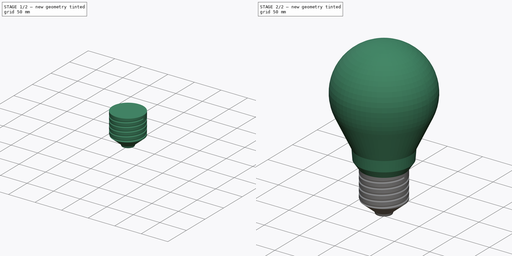
[diagram: build sequence overview — one tinted view per stage of 2, left to right]
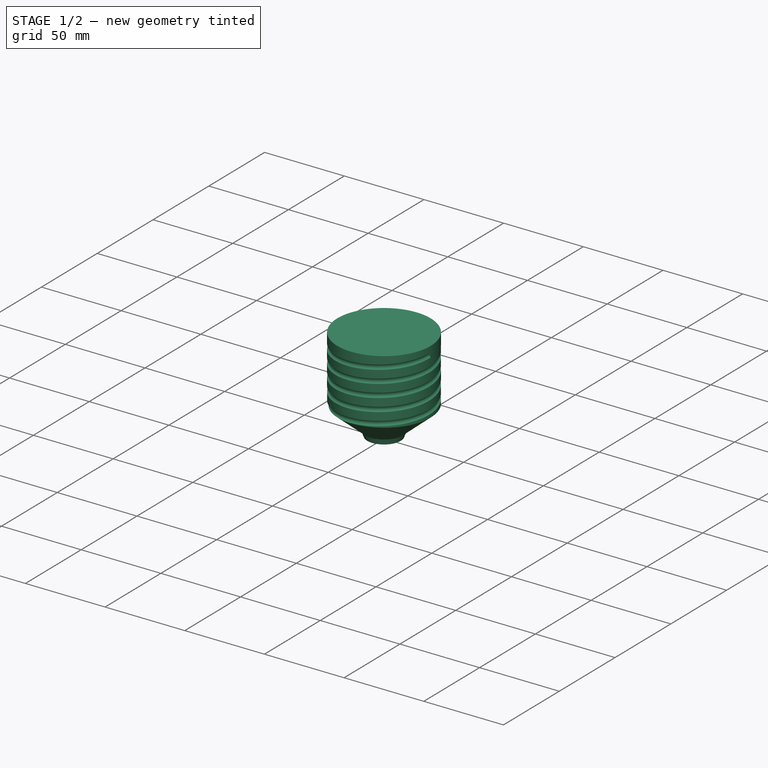
[diagram: stage 1 of 2 — iso view after this stage's code; geometry added in this stage tinted green]
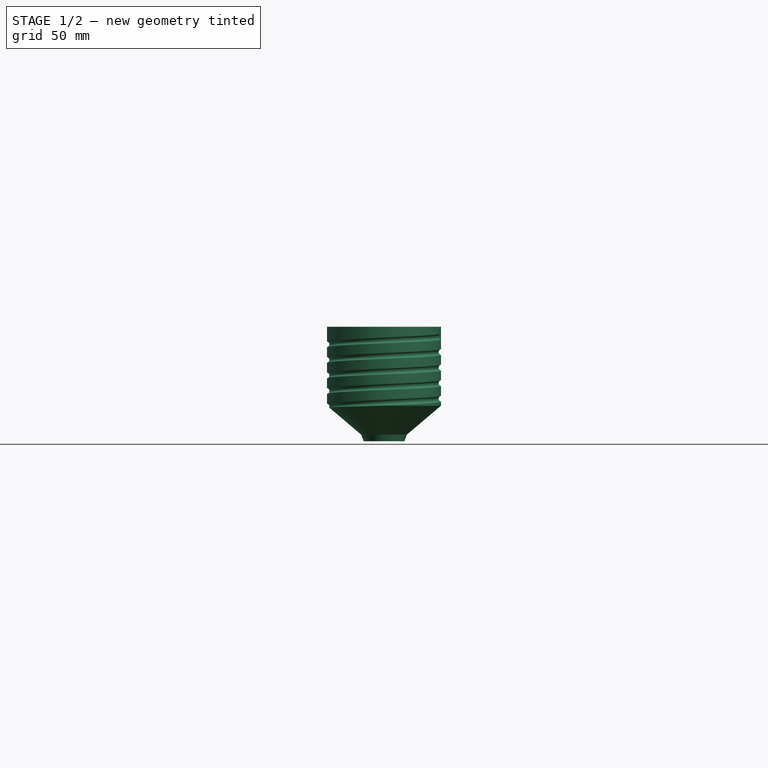
[diagram: stage 1 of 2 — front view after this stage's code; geometry added in this stage tinted green]
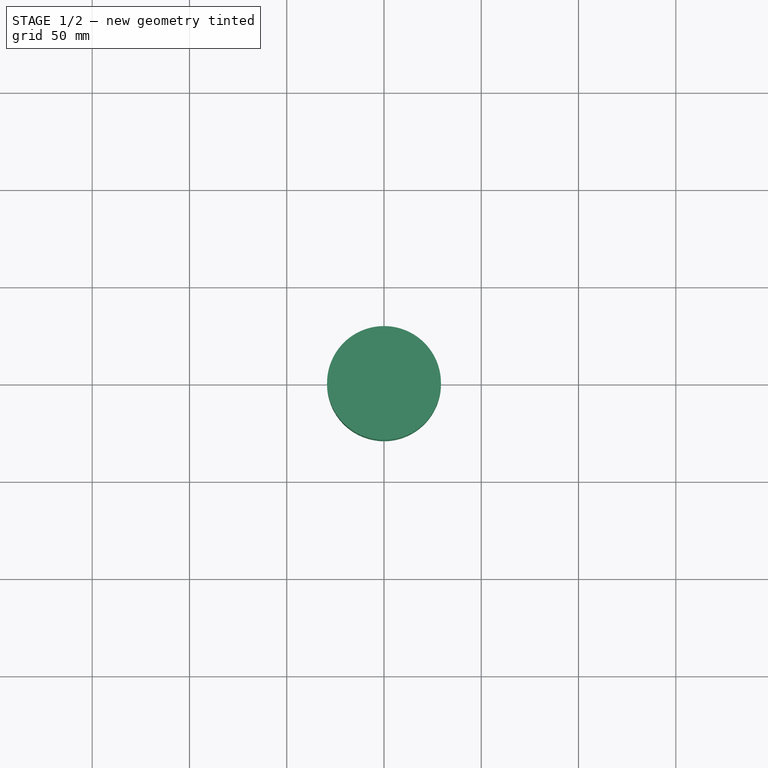
[diagram: stage 1 of 2 — top view after this stage's code; geometry added in this stage tinted green]
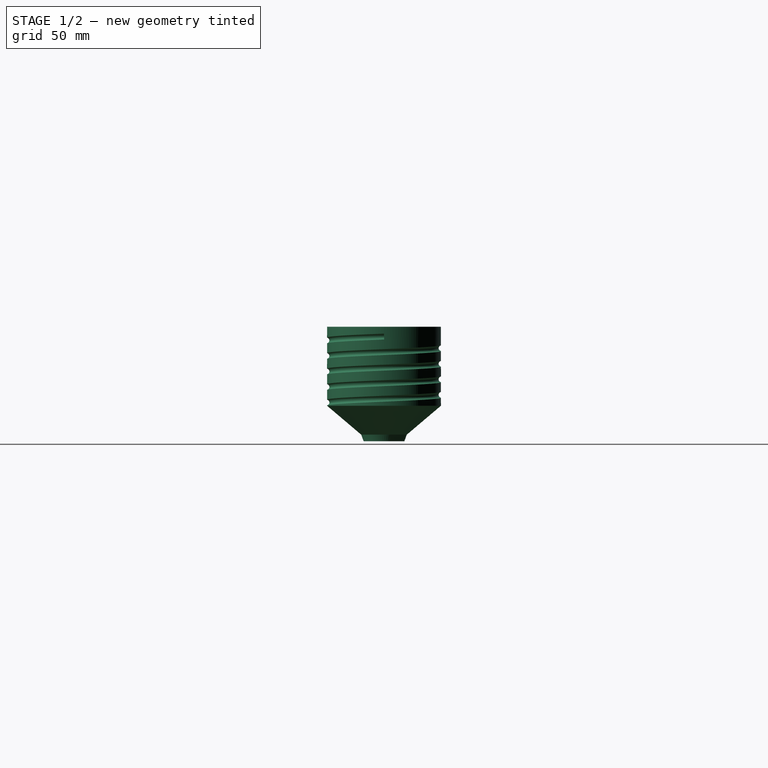
[diagram: stage 1 of 2 — right view after this stage's code; geometry added in this stage tinted green]
FCSTD DOCUMENT  (FreeCAD 0.18R13663 +14 (Git))
Label: lightbulb
License: All rights reserved
LicenseURL: http://en.wikipedia.org/wiki/All_rights_reserved
objects: Sketcher::SketchObject×3, PartDesign::Revolution×2, PartDesign::Body×2, Image::ImagePlane×1, Part::Helix×1, PartDesign::ShapeBinder×1, PartDesign::SubtractivePipe×1, Part::Feature×1
note: 14 computed .brp shape members not serialized (recipe doc carries the construction recipe); baked Part::Feature solids carry a one-line shape summary decoded from their .brp

FEATURE [PartDesign::Body] Body
  Group = -> [Sketch,Revolution]
  Origin = -> Origin
  Tip = -> Revolution
FEATURE [Sketcher::SketchObject] Sketch001
  MapMode = 5
  Placement = pos=(0,0,0) rot=(1,0,0;1.5708rad)
  Support = -> [XZ_Plane001]
  sketch-geometry (6):
    g0: LineSegment StartX=0 StartY=0 StartZ=0 EndX=0 EndY=-58.9019 EndZ=0
    g1: LineSegment StartX=0 StartY=-58.9019 StartZ=0 EndX=10.4623 EndY=-58.9019 EndZ=0
    g2: LineSegment StartX=10.4623 StartY=-58.9019 StartZ=0 EndX=11.7163 EndY=-55.4981 EndZ=0
    g3: LineSegment StartX=11.7163 StartY=-55.4981 StartZ=0 EndX=29.2727 EndY=-40.6289 EndZ=0
    g4: LineSegment StartX=29.2727 StartY=-40.6289 StartZ=0 EndX=29.2727 EndY=0 EndZ=0
    g5: LineSegment StartX=29.2727 StartY=0 StartZ=0 EndX=0 EndY=0 EndZ=0
  constraints (11):
    c: Coincident(g-1,g0)
    c: Vertical(g0)
    c: Coincident(g0,g1)
    c: Horizontal(g1)
    c: Coincident(g1,g2)
    c: Coincident(g2,g3)
    c: Coincident(g3,g4)
    c: PointOnObject(g4,g-1)
    c: Vertical(g4)
    c: Coincident(g4,g5)
    c: Coincident(g5,g0)
FEATURE [PartDesign::Revolution] Revolution001
  Angle = 360
  Axis = (0,0,1)
  Base = (0,0,0)
  Placement = pos=(0,0,0) rot=(1,0,0;1.5708rad)
  Profile = -> Sketch001
  ReferenceAxis = -> Sketch001 [V_Axis]
  Reversed = true
FEATURE [Part::Helix] Helix
  Angle = 0
  AttacherType = Attacher::AttachEngine3D
  Height = 40.7
  LocalCoord = 0
  Pitch = 8
  Placement = pos=(0,0,-45) rot=(0,0,1;0rad)
  Radius = 29.7
  Style = 1
FEATURE [Sketcher::SketchObject] Sketch002
  MapMode = 5
  Placement = pos=(0,0,0) rot=(1,0,0;1.5708rad)
  Support = -> [XZ_Plane001]
  sketch-geometry (1):
    g0: Circle CenterX=29.6523 CenterY=-44.98 CenterZ=0 NormalX=0 NormalY=0 NormalZ=1 AngleXU=0 Radius=1.56522
FEATURE [PartDesign::ShapeBinder] ReferenceHelix
  Placement = pos=(0,0,-45) rot=(0,0,1;0rad)
  Support = -> [Helix]
FEATURE [PartDesign::SubtractivePipe] SubtractivePipe
  AuxilleryCurvelinear = true
  AuxillerySpineTangent = false
  BaseFeature = -> Revolution001
  Binormal = (0,0,0)
  Mode = 0
  Placement = pos=(0,0,0) rot=(1,0,0;1.5708rad)
  Profile = -> Sketch002
  Spine = -> ReferenceHelix [Edge1,Edge2,Edge3,Edge4,Edge5]
  SpineTangent = false
  Transformation = 0
  Transition = 0
FEATURE [PartDesign::Body] Body001
  Group = -> [Sketch001,Revolution001,Sketch002,SubtractivePipe,ReferenceHelix]
  Origin = -> Origin001
  Tip = -> SubtractivePipe
FEATURE [Part::Feature] Body001001  label="Body002"
  shape: bbox 66.28 x 67.15 x 58.9 mm, 16 faces (baked)
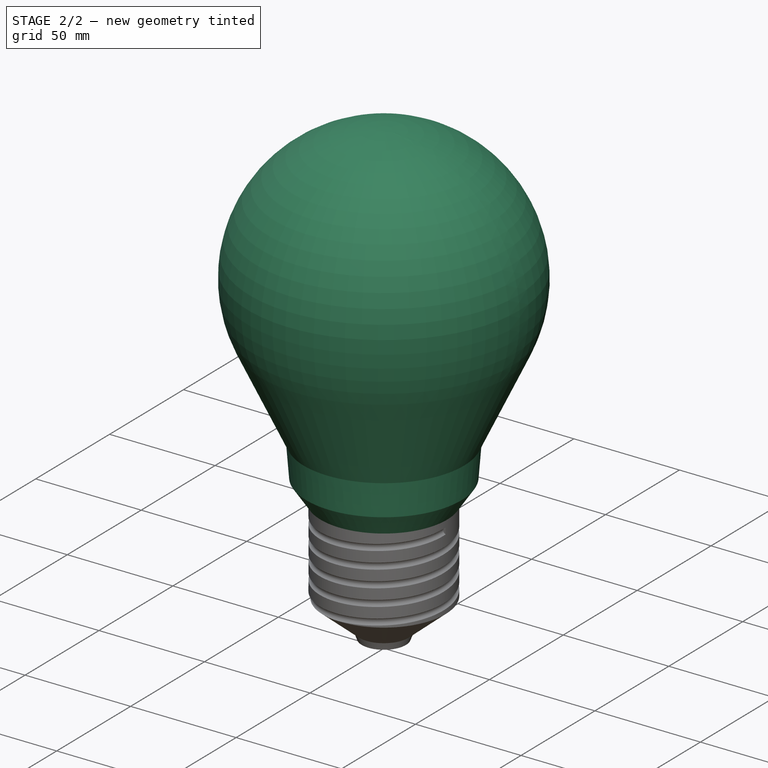
[diagram: stage 2 of 2 — iso view after this stage's code; geometry added in this stage tinted green]
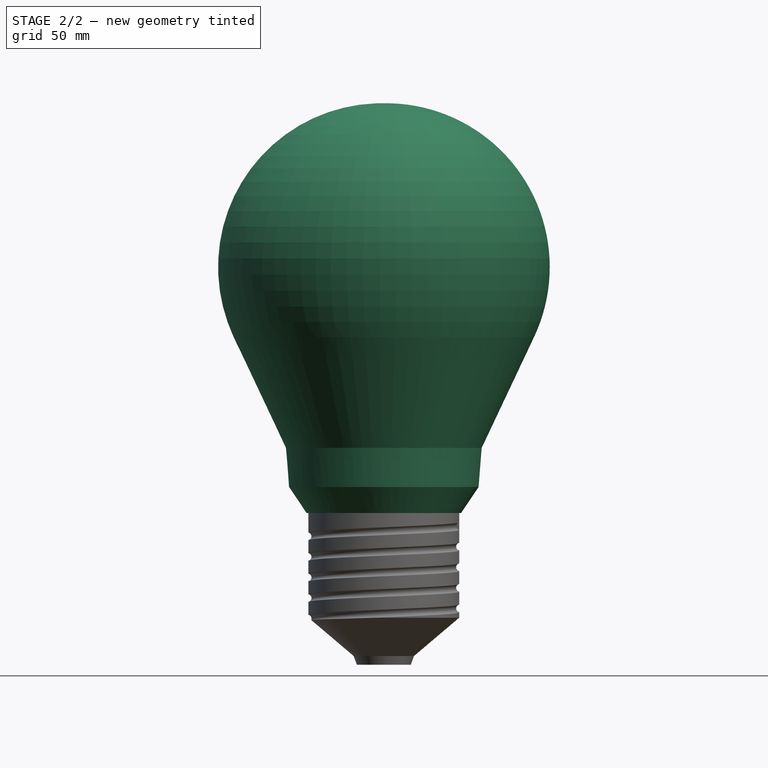
[diagram: stage 2 of 2 — front view after this stage's code; geometry added in this stage tinted green]
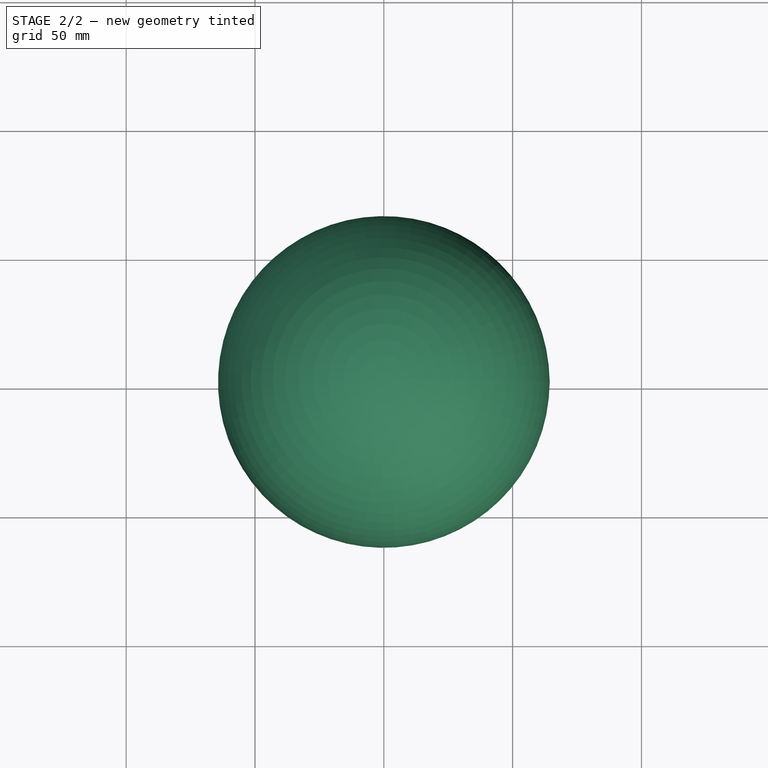
[diagram: stage 2 of 2 — top view after this stage's code; geometry added in this stage tinted green]
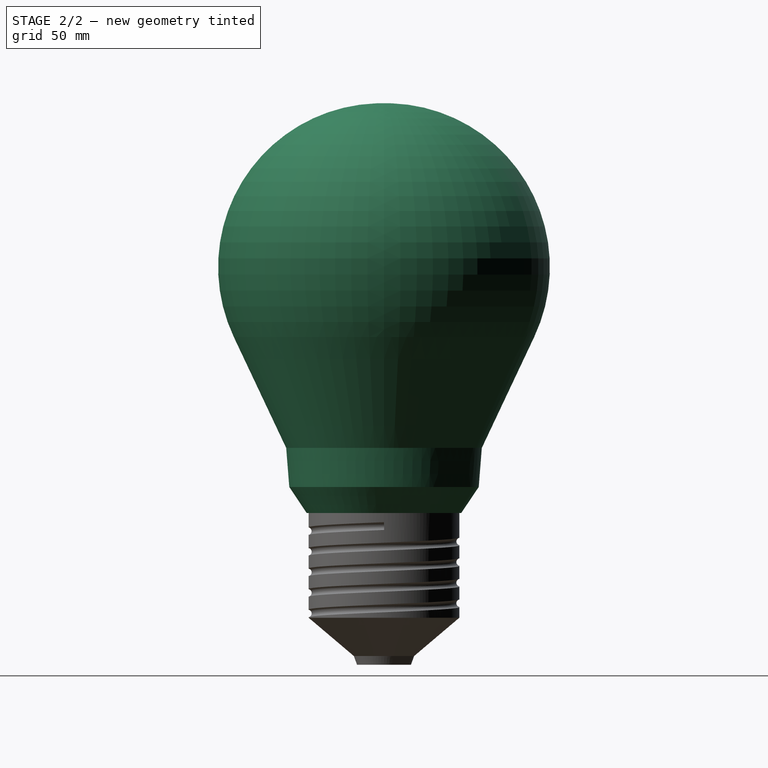
[diagram: stage 2 of 2 — right view after this stage's code; geometry added in this stage tinted green]
FEATURE [Sketcher::SketchObject] Sketch
  MapMode = 5
  Placement = pos=(0,0,0) rot=(1,0,0;1.5708rad)
  Support = -> [XZ_Plane]
  sketch-geometry (6):
    g0: LineSegment StartX=0 StartY=0 StartZ=0 EndX=30.0045 EndY=0 EndZ=0
    g1: LineSegment StartX=30.0045 StartY=0 StartZ=0 EndX=36.7824 EndY=10.1201 EndZ=0
    g2: LineSegment StartX=36.7824 StartY=10.1201 StartZ=0 EndX=37.9785 EndY=25.2706 EndZ=0
    g3: LineSegment StartX=37.9785 StartY=25.2706 StartZ=0 EndX=58.3132 EndY=68.3302 EndZ=0
    g4: ArcOfCircle CenterX=0.818507 CenterY=95.4818 CenterZ=0 NormalX=0 NormalY=0 NormalZ=1 AngleXU=0 Radius=63.5834 StartAngle=5.84199 EndAngle=7.86685
    g5: LineSegment StartX=0 StartY=159.06 StartZ=0 EndX=0 EndY=0 EndZ=0
  constraints (9):
    c: Coincident(g-1,g0)
    c: Horizontal(g0)
    c: Coincident(g0,g1)
    c: Coincident(g1,g2)
    c: Coincident(g2,g3)
    c: Tangent(g3,g4) = -1.5708
    c: Coincident(g5,g4)
    c: Coincident(g5,g-1)
    c: Vertical(g5)
FEATURE [Image::ImagePlane] ImagePlane
  Placement = pos=(0,0,50) rot=(-1,0,0;4.71239rad)
  XSize = 169
  YSize = 226
FEATURE [PartDesign::Revolution] Revolution
  Angle = 360
  Axis = (0,0,1)
  Base = (0,0,0)
  Placement = pos=(0,0,0) rot=(1,0,0;1.5708rad)
  Profile = -> Sketch
  ReferenceAxis = -> Sketch [V_Axis]
  Reversed = true
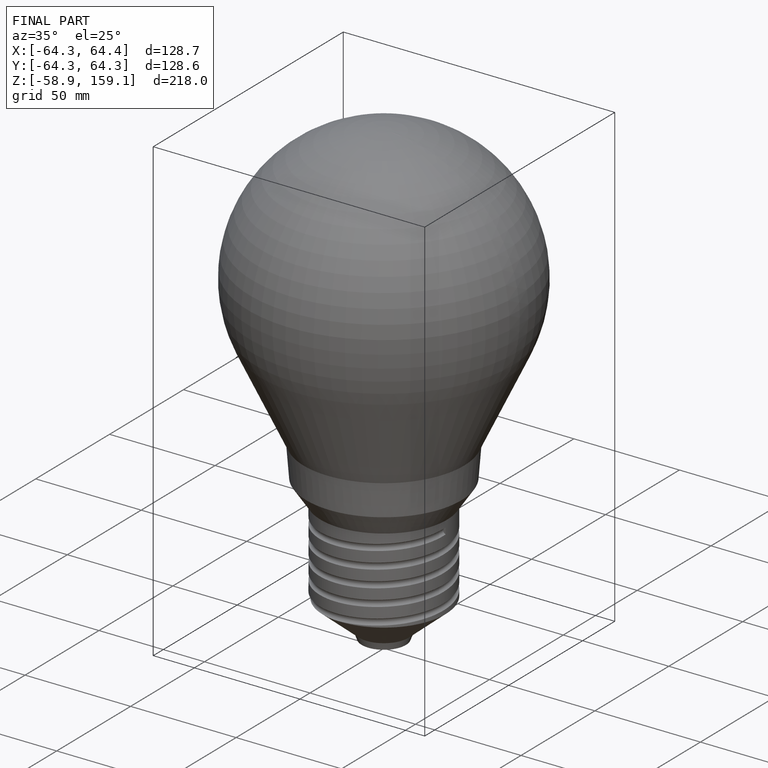
[diagram: finished part — iso view with bounding-box wireframe]
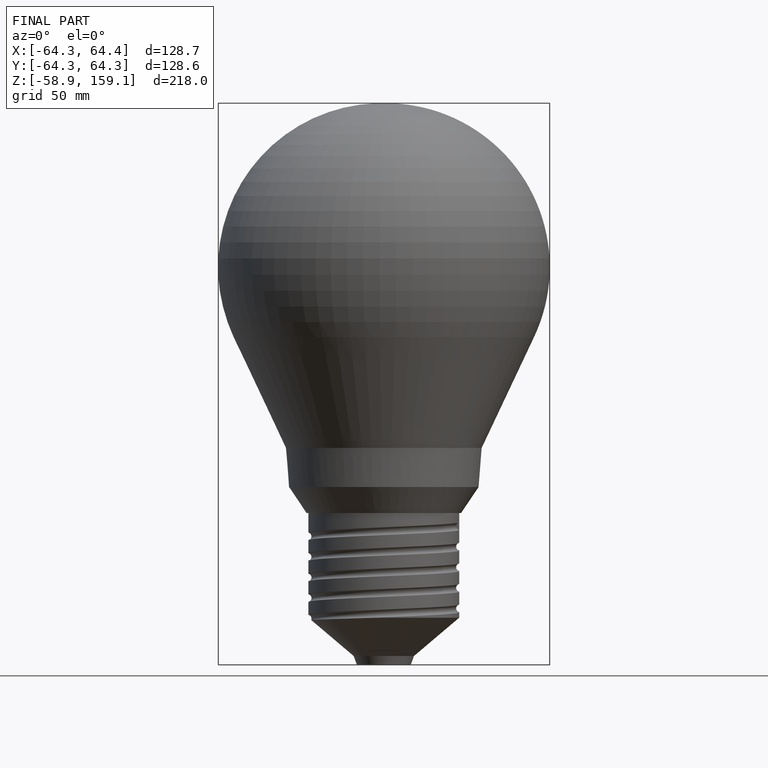
[diagram: finished part — front view with bounding-box wireframe]
